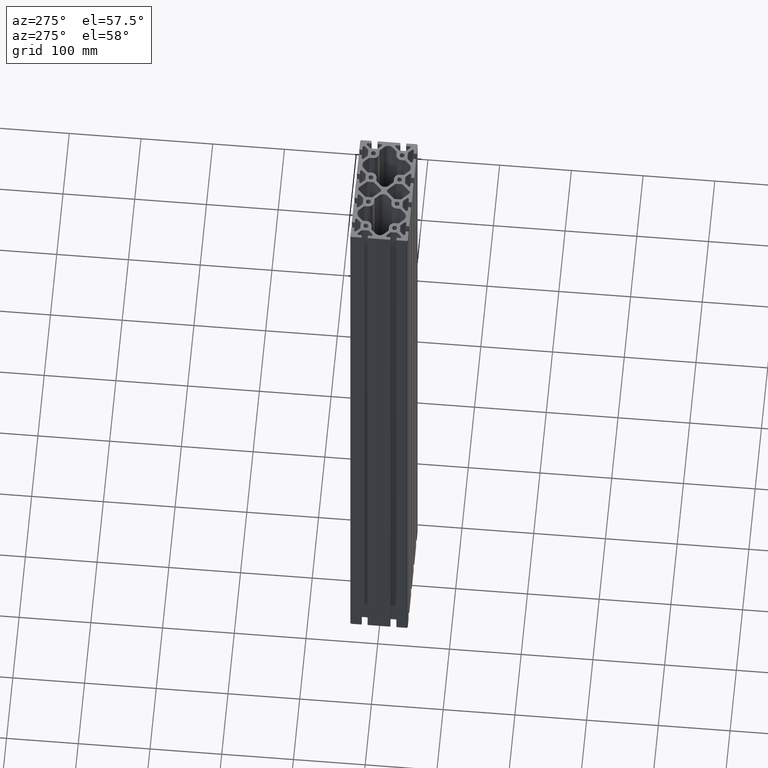
[diagram: clean part render]
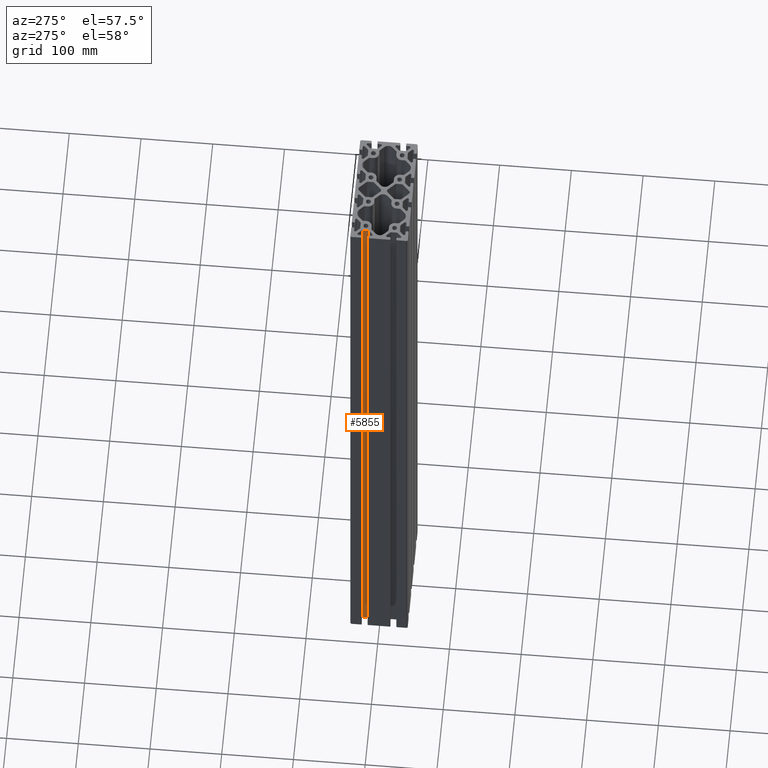
[diagram: same view with one face highlighted and labeled with its STEP entity id]
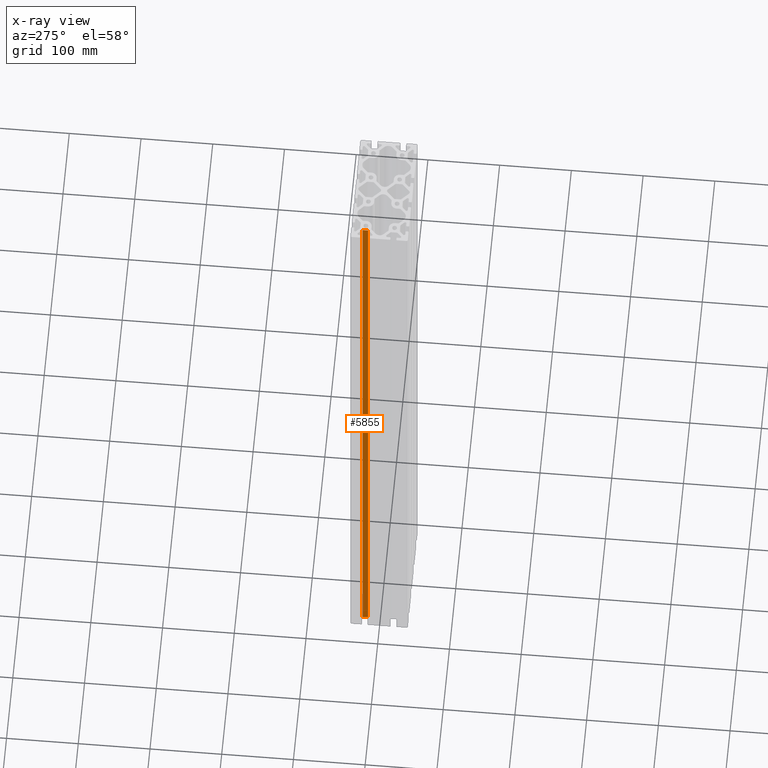
[diagram: x-ray of the same camera — body ghosted, the highlighted face saturated]
A machine part, auxiliary view. The second image highlights one B-rep face of the part: STEP entity #5855.
The next image is the same camera in x-ray: the body ghosted, the highlighted face saturated — about 0% of this face is hidden behind the body in this view.
In plain terms, the highlighted planar face has unit normal (1, 0, 0).
Its self-contained STEP definition (entity closure, byte-faithful):
#116=PLANE('',#6480);
#355=FACE_OUTER_BOUND('',#677,.T.);
#677=EDGE_LOOP('',(#5021,#5022,#5023,#5024));
#953=LINE('',#8878,#1537);
#1118=LINE('',#9521,#1702);
#1318=LINE('',#9978,#1902);
#1320=LINE('',#9981,#1904);
#1537=VECTOR('',#7018,10.);
#1702=VECTOR('',#7527,10.);
#1902=VECTOR('',#8071,10.);
#1904=VECTOR('',#8075,10.);
#2476=VERTEX_POINT('',#8875);
#2477=VERTEX_POINT('',#8877);
#2782=VERTEX_POINT('',#9518);
#2783=VERTEX_POINT('',#9520);
#3097=EDGE_CURVE('',#2476,#2477,#953,.T.);
#3429=EDGE_CURVE('',#2782,#2783,#1118,.T.);
#3686=EDGE_CURVE('',#2477,#2782,#1318,.T.);
#3688=EDGE_CURVE('',#2783,#2476,#1320,.T.);
#5021=ORIENTED_EDGE('',*,*,#3686,.F.);
#5022=ORIENTED_EDGE('',*,*,#3097,.F.);
#5023=ORIENTED_EDGE('',*,*,#3688,.F.);
#5024=ORIENTED_EDGE('',*,*,#3429,.F.);
#5855=ADVANCED_FACE('',(#355),#116,.F.);
#6480=AXIS2_PLACEMENT_3D('',#9980,#8073,#8074);
#7018=DIRECTION('',(0.,1.,0.));
#7527=DIRECTION('',(0.,-1.,0.));
#8071=DIRECTION('',(0.,0.,1.));
#8073=DIRECTION('center_axis',(1.,0.,0.));
#8074=DIRECTION('ref_axis',(0.,1.,0.));
#8075=DIRECTION('',(0.,0.,-1.));
#8875=CARTESIAN_POINT('',(-67.5,16.1568542494924,0.));
#8877=CARTESIAN_POINT('',(-67.5,23.8431457505076,0.));
#8878=CARTESIAN_POINT('',(-67.5,7.66421356237309,0.));
#9518=CARTESIAN_POINT('',(-67.5,23.8431457505076,1000.));
#9520=CARTESIAN_POINT('',(-67.5,16.1568542494924,1000.));
#9521=CARTESIAN_POINT('',(-67.5,7.66421356237309,1000.));
#9978=CARTESIAN_POINT('',(-67.5,23.8431457505076,0.));
#9980=CARTESIAN_POINT('Origin',(-67.5,15.3284271247462,0.));
#9981=CARTESIAN_POINT('',(-67.5,16.1568542494924,0.));